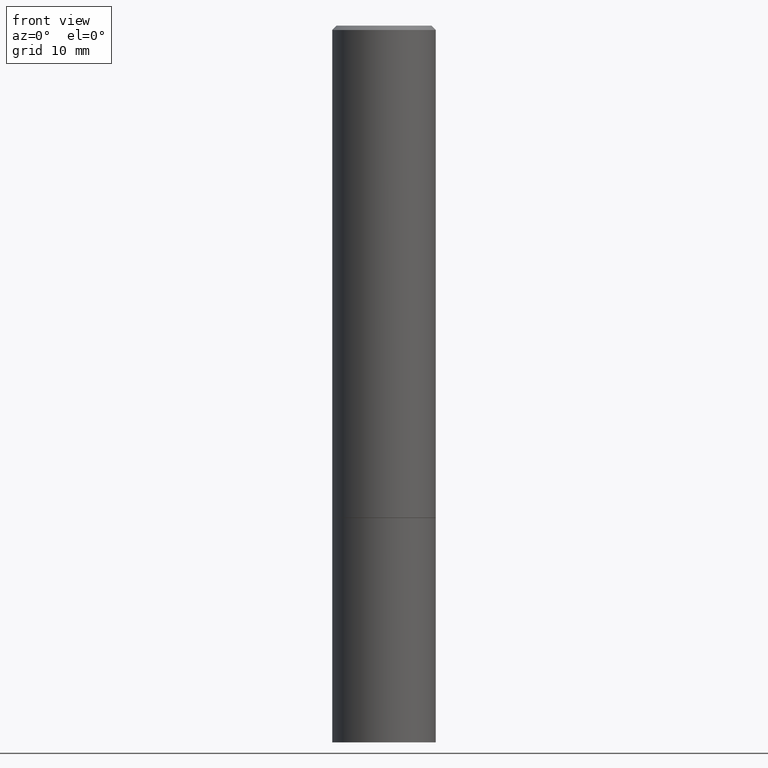
[diagram: clean part render]
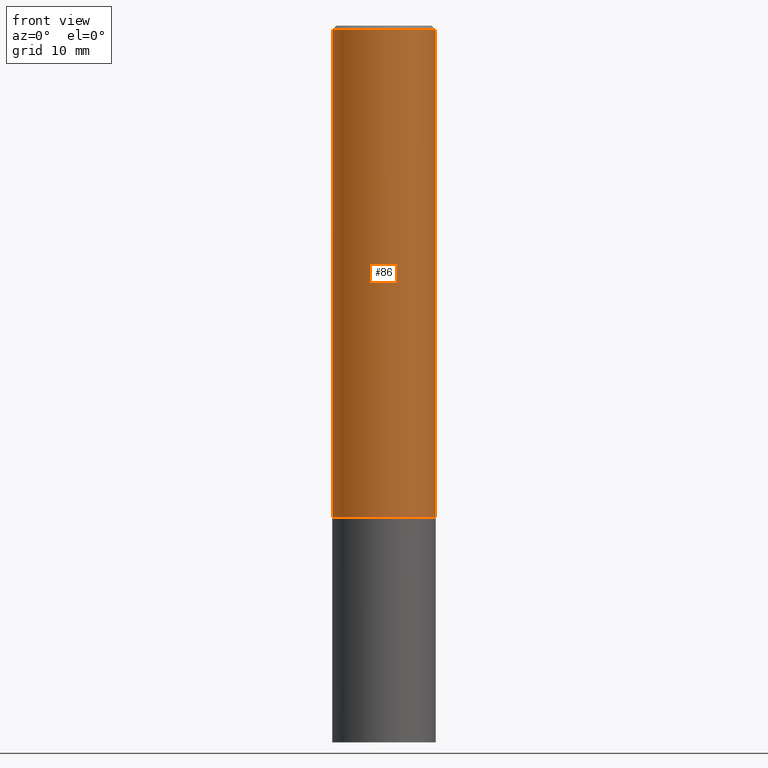
[diagram: same view with one face highlighted and labeled with its STEP entity id]
A machine part, front view. The second image highlights one B-rep face of the part: STEP entity #86.
In plain terms, the highlighted cylindrical surface (partial cylindrical patch) has radius 5.9995 mm, axis along (-0, 0, 1).
Its self-contained STEP definition (entity closure, byte-faithful):
#8 = AXIS2_PLACEMENT_3D ( 'NONE', #92, #153, #264 ) ;
#11 = FACE_OUTER_BOUND ( 'NONE', #162, .T. ) ;
#34 = ORIENTED_EDGE ( 'NONE', *, *, #239, .T. ) ;
#42 = EDGE_CURVE ( 'NONE', #76, #285, #226, .T. ) ;
#58 = AXIS2_PLACEMENT_3D ( 'NONE', #94, #147, #259 ) ;
#67 = CARTESIAN_POINT ( 'NONE',  ( 0.2361999999999999933, -9.481117575628557435E-15, -2.243100000000000094 ) ) ;
#72 = VERTEX_POINT ( 'NONE', #206 ) ;
#76 = VERTEX_POINT ( 'NONE', #229 ) ;
#86 = ADVANCED_FACE ( 'NONE', ( #11 ), #91, .T. ) ;
#91 = CYLINDRICAL_SURFACE ( 'NONE', #58, 0.2361999999999998545 ) ;
#92 = CARTESIAN_POINT ( 'NONE',  ( 5.485431079153880270E-29, -7.831741791159060910E-15, -2.243100000000000094 ) ) ;
#94 = CARTESIAN_POINT ( 'NONE',  ( 0.000000000000000000, 0.000000000000000000, 0.000000000000000000 ) ) ;
#103 = VECTOR ( 'NONE', #330, 39.37007874015748143 ) ;
#111 = CARTESIAN_POINT ( 'NONE',  ( -0.2361999999999998545, 1.678301941865355605E-15, -1.161852468318208056E-29 ) ) ;
#120 = DIRECTION ( 'NONE',  ( -2.445468806185136597E-29, 3.491481338843145583E-15, 1.000000000000000000 ) ) ;
#121 = EDGE_CURVE ( 'NONE', #285, #72, #301, .T. ) ;
#147 = DIRECTION ( 'NONE',  ( -2.445468806185136597E-29, 3.491481338843145583E-15, 1.000000000000000000 ) ) ;
#153 = DIRECTION ( 'NONE',  ( -2.445468806185136597E-29, 3.491481338843145583E-15, 1.000000000000000000 ) ) ;
#162 = EDGE_LOOP ( 'NONE', ( #365, #34, #277, #190 ) ) ;
#186 = CARTESIAN_POINT ( 'NONE',  ( -0.2361999999999997157, 1.579546157692631255E-15, -0.02000000000000004552 ) ) ;
#187 = LINE ( 'NONE', #189, #103 ) ;
#189 = CARTESIAN_POINT ( 'NONE',  ( 0.2361999999999998545, -1.649375784469495145E-15, 1.151752954442999387E-29 ) ) ;
#190 = ORIENTED_EDGE ( 'NONE', *, *, #121, .F. ) ;
#206 = CARTESIAN_POINT ( 'NONE',  ( 0.2361999999999997157, -1.690279253850496996E-15, -0.02000000000000004552 ) ) ;
#218 = AXIS2_PLACEMENT_3D ( 'NONE', #322, #120, #350 ) ;
#226 = LINE ( 'NONE', #111, #349 ) ;
#229 = CARTESIAN_POINT ( 'NONE',  ( -0.2362000000000000210, -2.272483767102602555E-15, -2.243100000000000094 ) ) ;
#239 = EDGE_CURVE ( 'NONE', #76, #249, #329, .T. ) ;
#249 = VERTEX_POINT ( 'NONE', #67 ) ;
#259 = DIRECTION ( 'NONE',  ( 1.000000000000000000, -6.982962677686266711E-15, 4.876176775795935793E-29 ) ) ;
#264 = DIRECTION ( 'NONE',  ( 1.000000000000000000, -6.982962677686269077E-15, 0.000000000000000000 ) ) ;
#265 = EDGE_CURVE ( 'NONE', #249, #72, #187, .T. ) ;
#277 = ORIENTED_EDGE ( 'NONE', *, *, #265, .T. ) ;
#285 = VERTEX_POINT ( 'NONE', #186 ) ;
#301 = CIRCLE ( 'NONE', #218, 0.2361999999999997157 ) ;
#322 = CARTESIAN_POINT ( 'NONE',  ( 4.890937612370284544E-31, -6.982962677686307633E-17, -0.02000000000000004552 ) ) ;
#329 = CIRCLE ( 'NONE', #8, 0.2361999999999999933 ) ;
#330 = DIRECTION ( 'NONE',  ( -2.445468806185136877E-29, 3.491481338843145188E-15, 1.000000000000000000 ) ) ;
#333 = DIRECTION ( 'NONE',  ( -2.445468806185136877E-29, 3.491481338843145188E-15, 1.000000000000000000 ) ) ;
#349 = VECTOR ( 'NONE', #333, 39.37007874015748143 ) ;
#350 = DIRECTION ( 'NONE',  ( 1.000000000000000000, -6.982962677686266711E-15, 0.000000000000000000 ) ) ;
#365 = ORIENTED_EDGE ( 'NONE', *, *, #42, .F. ) ;